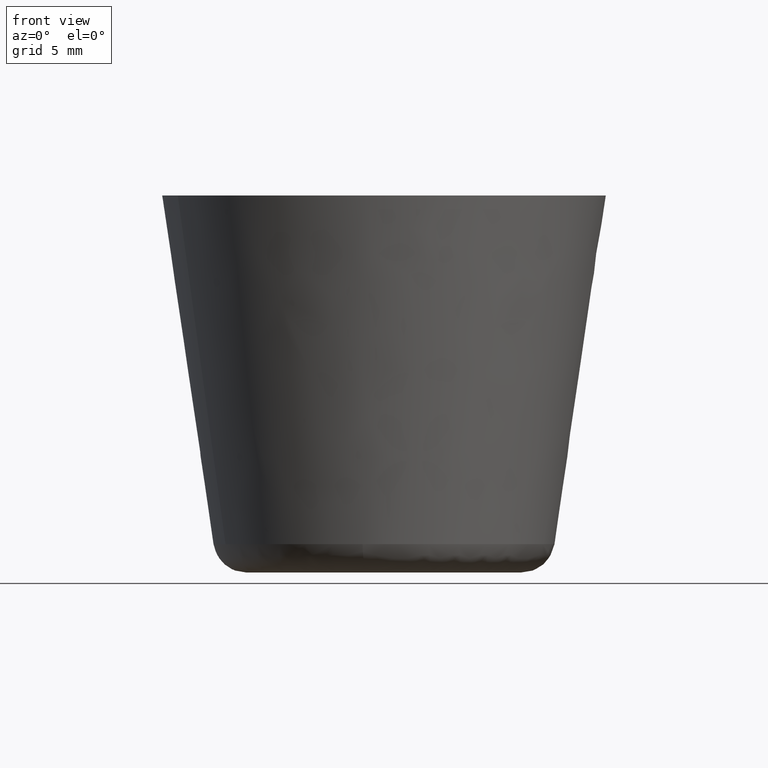
[diagram: clean part render]
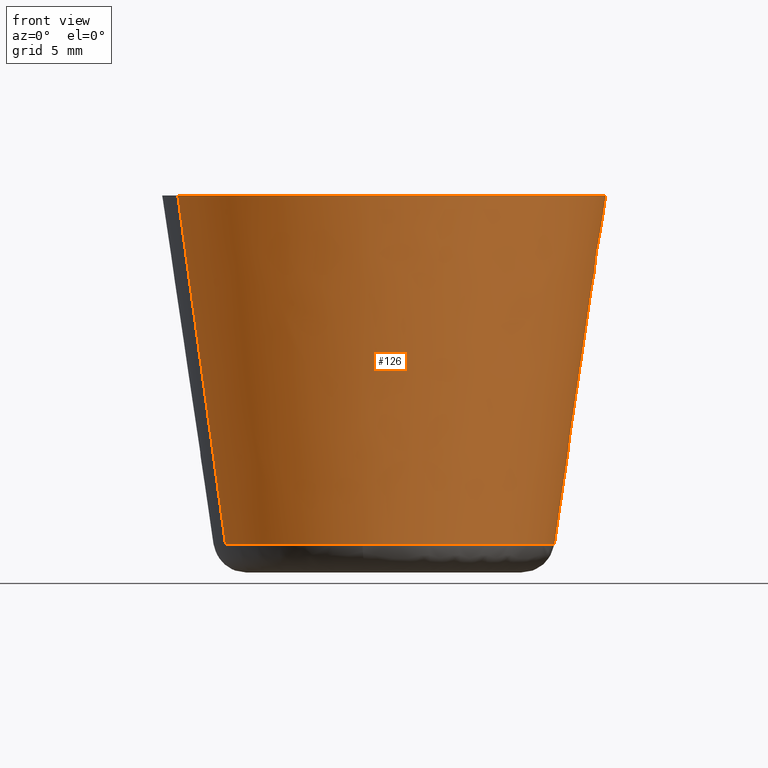
[diagram: same view with one face highlighted and labeled with its STEP entity id]
A machine part, front view. The second image highlights one B-rep face of the part: STEP entity #126.
In plain terms, the highlighted face is a freeform B-spline surface patch.
Its self-contained STEP definition (entity closure, byte-faithful):
#126=ADVANCED_FACE('',(#283),#282,.T.);
#282=( BOUNDED_SURFACE() B_SPLINE_SURFACE( 2,1,((#455,#456),(#457,#458),(#459,#460),(#461,#462),(#463,#464)), .UNSPECIFIED.,.F.,.F.,.F.) B_SPLINE_SURFACE_WITH_KNOTS((3,2,3),(2,2),(0.00000000000E+000,5.00000000000E-001,1.00000000000E+000),(0.00000000000E+000,1.00000000000E+000), .UNSPECIFIED. ) GEOMETRIC_REPRESENTATION_ITEM() RATIONAL_B_SPLINE_SURFACE(((1.00000000000E+000,1.00000000000E+000),(7.07106781187E-001,7.07106781187E-001),(1.00000000000E+000,1.00000000000E+000),(7.07106781187E-001,7.07106781187E-001),(1.00000000000E+000,1.00000000000E+000))) REPRESENTATION_ITEM('') SURFACE() );
#283=FACE_OUTER_BOUND('',#465,.T.);
#455=CARTESIAN_POINT('',(-7.14925656708E+000,-2.82861506117E+000,1.28175574448E+000));
#456=CARTESIAN_POINT('',(-9.29873946260E+000,-3.67906148660E+000,1.70006966617E+001));
#457=CARTESIAN_POINT('',(-4.32064150591E+000,-9.97787162825E+000,1.28175574448E+000));
#458=CARTESIAN_POINT('',(-5.61967797599E+000,-1.29778009492E+001,1.70006966617E+001));
#459=CARTESIAN_POINT('',(2.82861506117E+000,-7.14925656708E+000,1.28175574448E+000));
#460=CARTESIAN_POINT('',(3.67906148660E+000,-9.29873946260E+000,1.70006966617E+001));
#461=CARTESIAN_POINT('',(9.97787162825E+000,-4.32064150591E+000,1.28175574448E+000));
#462=CARTESIAN_POINT('',(1.29778009492E+001,-5.61967797599E+000,1.70006966617E+001));
#463=CARTESIAN_POINT('',(7.14925656708E+000,2.82861506117E+000,1.28175574448E+000));
#464=CARTESIAN_POINT('',(9.29873946260E+000,3.67906148660E+000,1.70006966617E+001));
#465=EDGE_LOOP('',(#630,#631,#632,#633,#634,#635,#636,#637,#638));
#630=ORIENTED_EDGE('',*,*,#740,.F.);
#631=ORIENTED_EDGE('',*,*,#741,.F.);
#632=ORIENTED_EDGE('',*,*,#742,.F.);
#633=ORIENTED_EDGE('',*,*,#743,.F.);
#634=ORIENTED_EDGE('',*,*,#734,.T.);
#635=ORIENTED_EDGE('',*,*,#709,.T.);
#636=ORIENTED_EDGE('',*,*,#708,.T.);
#637=ORIENTED_EDGE('',*,*,#707,.T.);
#638=ORIENTED_EDGE('',*,*,#739,.F.);
#707=EDGE_CURVE('',#910,#902,#911,.T.);
#708=EDGE_CURVE('',#917,#910,#918,.T.);
#709=EDGE_CURVE('',#924,#917,#925,.T.);
#734=EDGE_CURVE('',#1096,#924,#1097,.T.);
#739=EDGE_CURVE('',#1124,#902,#1131,.T.);
#740=EDGE_CURVE('',#1137,#1124,#1138,.T.);
#741=EDGE_CURVE('',#1144,#1137,#1145,.T.);
#742=EDGE_CURVE('',#1151,#1144,#1152,.T.);
#743=EDGE_CURVE('',#1096,#1151,#1158,.T.);
#902=VERTEX_POINT('',#1310);
#910=VERTEX_POINT('',#1316);
#911=CIRCLE('',#1320,9.99999937607E+000);
#917=VERTEX_POINT('',#1321);
#918=CIRCLE('',#1325,9.99999971291E+000);
#924=VERTEX_POINT('',#1326);
#925=CIRCLE('',#1330,1.00000000000E+001);
#1096=VERTEX_POINT('',#1444);
#1097=(BOUNDED_CURVE() B_SPLINE_CURVE(1,(#1445,#1446),.UNSPECIFIED.,.F.,.F.) B_SPLINE_CURVE_WITH_KNOTS((2,2),(2.05637024471E-007,9.99955680974E-001),.UNSPECIFIED.) CURVE() GEOMETRIC_REPRESENTATION_ITEM() RATIONAL_B_SPLINE_CURVE((1.00000000000E+000,1.00000000000E+000)) REPRESENTATION_ITEM('') );
#1124=VERTEX_POINT('',#1462);
#1131=(BOUNDED_CURVE() B_SPLINE_CURVE(1,(#1467,#1468),.UNSPECIFIED.,.F.,.F.) B_SPLINE_CURVE_WITH_KNOTS((2,2),(0.00000000000E+000,1.00000000000E+000),.UNSPECIFIED.) CURVE() GEOMETRIC_REPRESENTATION_ITEM() RATIONAL_B_SPLINE_CURVE((7.50000000000E-001,7.50000000000E-001)) REPRESENTATION_ITEM('') );
#1137=VERTEX_POINT('',#1469);
#1138=CIRCLE('',#1473,7.68849320486E+000);
#1144=VERTEX_POINT('',#1474);
#1145=CIRCLE('',#1478,7.68849320486E+000);
#1151=VERTEX_POINT('',#1479);
#1152=CIRCLE('',#1483,7.68849365075E+000);
#1158=CIRCLE('',#1487,7.68849363613E+000);
#1310=CARTESIAN_POINT('',(-9.29864516177E+000,-3.67902037691E+000,1.69999975446E+001));
#1316=CARTESIAN_POINT('',(7.84585198288E-001,-9.96917345939E+000,1.69999977549E+001));
#1317=CARTESIAN_POINT('',(-1.61057115200E-007,-3.07353158924E-007,1.69999976498E+001));
#1318=DIRECTION('',(1.50170098371E-008,-9.36798343997E-009,-1.00000000000E+000));
#1319=DIRECTION('',(-7.84585408298E-002,9.96917377404E-001,-1.05173181620E-008));
#1320=AXIS2_PLACEMENT_3D('',#1317,#1318,#1319);
#1321=CARTESIAN_POINT('',(1.00000000000E+001,0.00000000000E+000,1.70000000000E+001));
#1322=CARTESIAN_POINT('',(2.87085846651E-007,6.57982299757E-008,1.69999988775E+001));
#1323=DIRECTION('',(1.12252792420E-007,1.21434315144E-007,-1.00000000000E+000));
#1324=DIRECTION('',(-1.00000000000E+000,6.57982318646E-009,-1.12252791620E-007));
#1325=AXIS2_PLACEMENT_3D('',#1322,#1323,#1324);
#1326=CARTESIAN_POINT('',(9.29864345023E+000,3.67902568426E+000,1.70000000000E+001));
#1327=CARTESIAN_POINT('',(0.00000000000E+000,0.00000000000E+000,1.70000000000E+001));
#1328=DIRECTION('',(0.00000000000E+000,2.51214793389E-016,-1.00000000000E+000));
#1329=DIRECTION('',(1.00000000000E+000,-0.00000000000E+000,-0.00000000000E+000));
#1330=AXIS2_PLACEMENT_3D('',#1327,#1328,#1329);
#1444=CARTESIAN_POINT('',(7.14925608311E+000,2.82861756698E+000,1.28175893538E+000));
#1445=CARTESIAN_POINT('',(7.14925656708E+000,2.82861506117E+000,1.28175574448E+000));
#1446=CARTESIAN_POINT('',(9.29864419959E+000,3.67902379564E+000,1.70000000134E+001));
#1462=CARTESIAN_POINT('',(-7.14925830686E+000,-2.82861066392E+000,1.28175574448E+000));
#1467=CARTESIAN_POINT('',(-7.14925656708E+000,-2.82861506117E+000,1.28175574448E+000));
#1468=CARTESIAN_POINT('',(-9.29873946260E+000,-3.67906148660E+000,1.70006966617E+001));
#1469=CARTESIAN_POINT('',(-9.63623768233E-001,-7.62786756403E+000,1.28175619139E+000));
#1470=CARTESIAN_POINT('',(-1.78525520589E-007,-4.08758118020E-007,1.28175600664E+000));
#1471=DIRECTION('',(4.86859240866E-008,-3.03714289667E-008,-1.00000000000E+000));
#1472=DIRECTION('',(-7.84582060793E-002,9.96917403750E-001,-3.40976163788E-008));
#1473=AXIS2_PLACEMENT_3D('',#1470,#1471,#1472);
#1474=CARTESIAN_POINT('',(6.03225205781E-001,-7.66479309329E+000,1.28175626880E+000));
#1475=CARTESIAN_POINT('',(-1.78525520589E-007,-4.08758118020E-007,1.28175600664E+000));
#1476=DIRECTION('',(4.86859240866E-008,-3.03714289667E-008,-1.00000000000E+000));
#1477=DIRECTION('',(-7.84582060793E-002,9.96917403750E-001,-3.40976163788E-008));
#1478=AXIS2_PLACEMENT_3D('',#1475,#1476,#1477);
#1479=CARTESIAN_POINT('',(7.68849400000E+000,0.00000000000E+000,1.28175900000E+000));
#1480=CARTESIAN_POINT('',(3.49252536225E-007,8.00464934336E-008,1.28175763440E+000));
#1481=DIRECTION('',(1.77616177432E-007,1.92143921000E-007,-1.00000000000E+000));
#1482=DIRECTION('',(-1.00000000000E+000,1.04112062869E-008,-1.77616175432E-007));
#1483=AXIS2_PLACEMENT_3D('',#1480,#1481,#1482);
#1484=CARTESIAN_POINT('',(3.63868871922E-007,5.06321389260E-008,1.28175807870E+000));
#1485=DIRECTION('',(1.19827997451E-007,-1.29765232452E-016,-1.00000000000E+000));
#1486=DIRECTION('',(-1.25332478827E-001,-9.92114796660E-001,-1.50183398246E-008));
#1487=AXIS2_PLACEMENT_3D('',#1484,#1485,#1486);